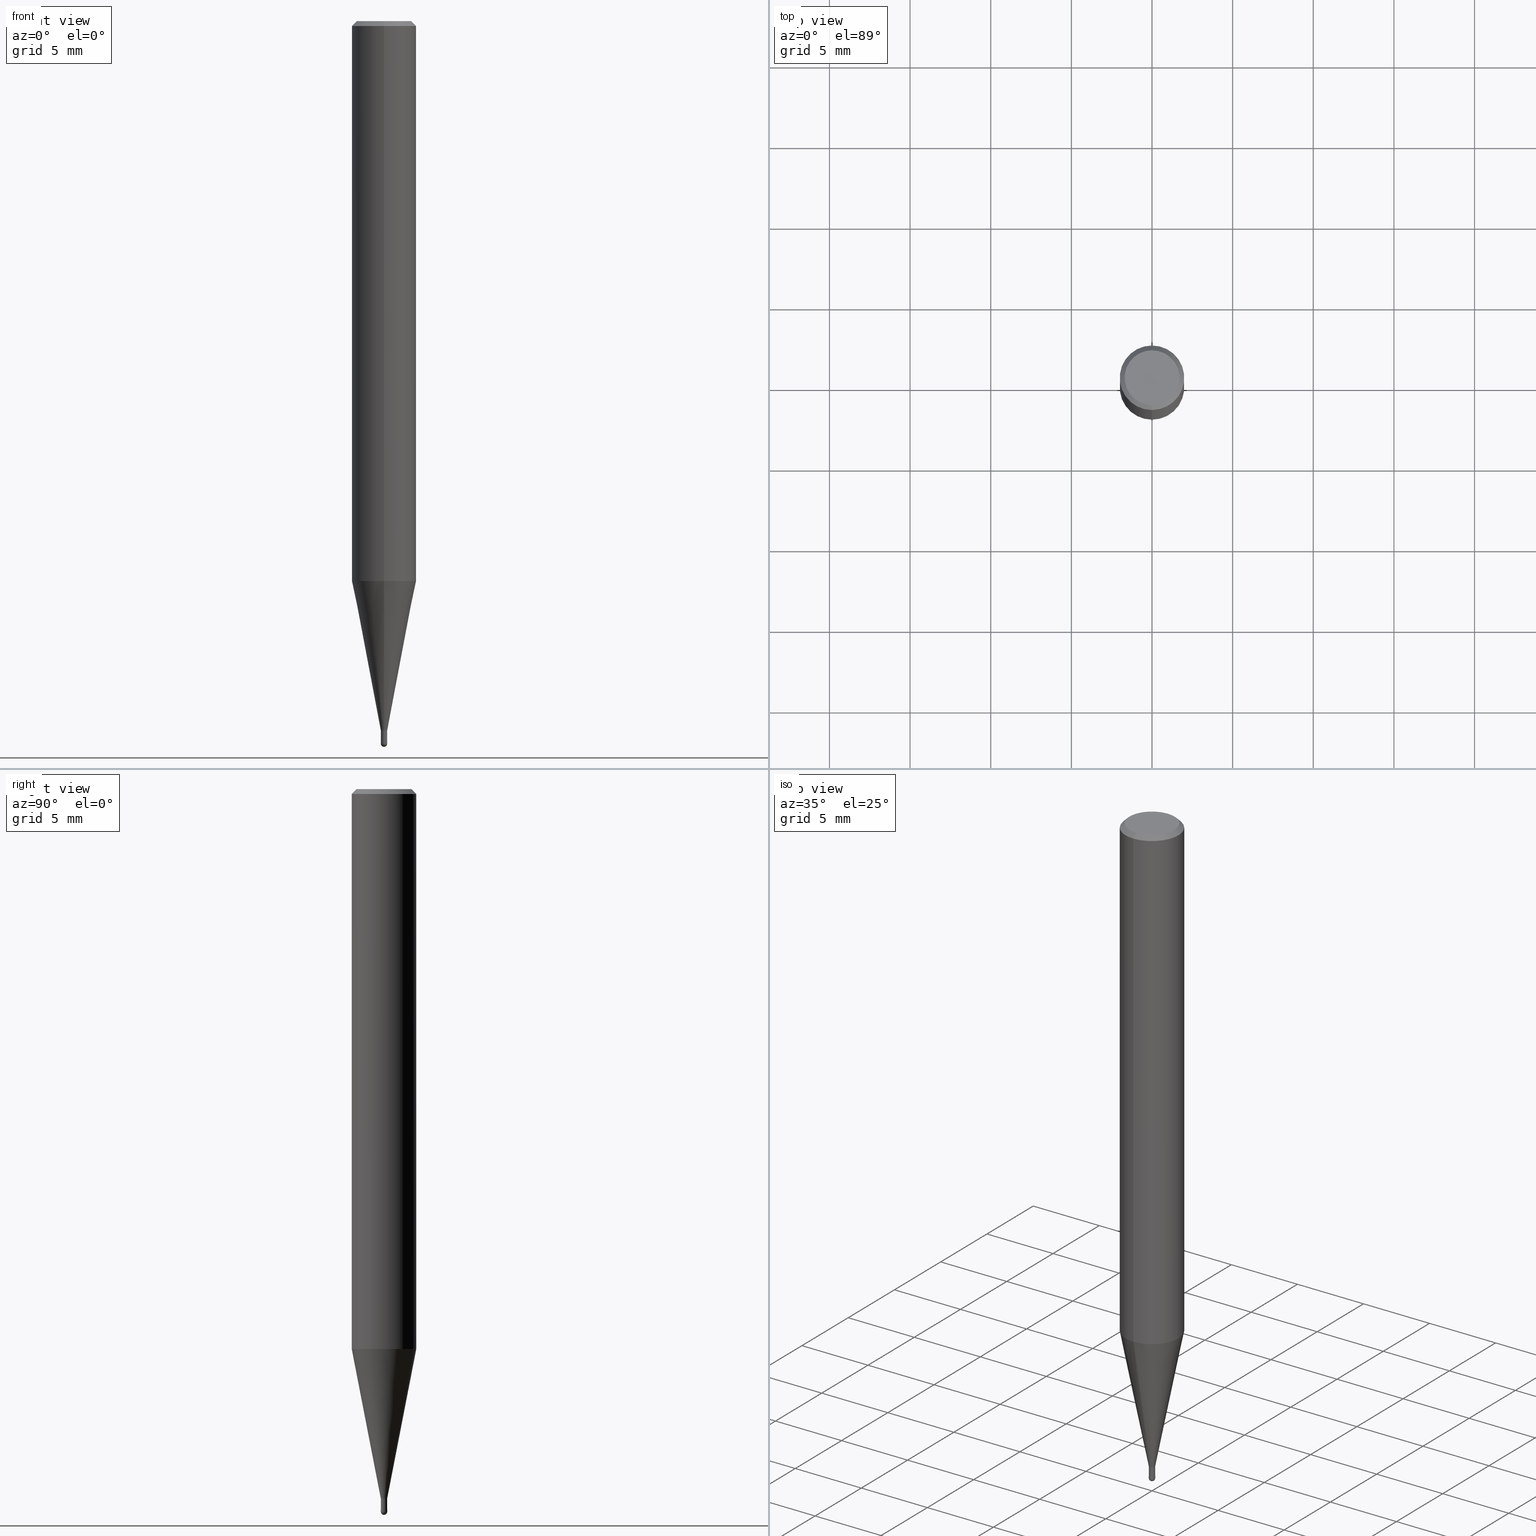
[diagram: canonical four-view strip — front | top / right | iso, engineering-drawing reading convention]
A machine part, canonical four-view strip (front | top / right | iso — engineering-drawing reading convention). The complete STEP part file that produces these views, byte-faithful:
ISO-10303-21;
HEADER;
FILE_DESCRIPTION(('no description'),'unknown implementation level');
FILE_NAME('CSELB2004-010-Huellk.stp','  ',('CIMSOURCE GmbH'),('CADClick - KiM GmbH - www.kimweb.de'),'unknown preprocess','ACIS','unknown authorization');
FILE_SCHEMA(('automotive_design'));
ENDSEC;
DATA;
#1=MECHANICAL_DESIGN_GEOMETRIC_PRESENTATION_REPRESENTATION(' ',(#14,#15,#16,#17,#18,#19,#20,#21,#22,#23,#24,#25,#26,#27,#28,#29,#30,#31,#32,#33,#34,#35,#36,#37,#38,#39,#40,#41,#42,#43,#44,#45,#46,#47,#48,#49,#50,#51,#52,#53,#54,#55,#56,#57,#58,#59,#60,#61,#62,#63,#64,#65,#66,#67,#68,#69,#70,#71,#72,#73,#74),#10);
#2=PRODUCT_DEFINITION_CONTEXT('',#75,'design');
#3=APPLICATION_PROTOCOL_DEFINITION('INTERNATIONAL STANDARD','automotive_design',1994,#75);
#4=PRODUCT_CATEGORY_RELATIONSHIP('NONE','NONE',#76,#77);
#5=SHAPE_DEFINITION_REPRESENTATION(#78,#79);
#6=PRODUCT_DEFINITION_CONTEXT('',#80,'design');
#7=APPLICATION_PROTOCOL_DEFINITION('INTERNATIONAL STANDARD','automotive_design',1994,#80);
#8=PRODUCT_CATEGORY_RELATIONSHIP('NONE','NONE',#81,#82);
#9=SHAPE_DEFINITION_REPRESENTATION(#83,#84);
#10= (GEOMETRIC_REPRESENTATION_CONTEXT(3)GLOBAL_UNCERTAINTY_ASSIGNED_CONTEXT((#87))GLOBAL_UNIT_ASSIGNED_CONTEXT((#89,#90,#91))REPRESENTATION_CONTEXT('NONE','WORKSPACE'));
#14=STYLED_ITEM('',(#93),#94);
#15=STYLED_ITEM('',(#95),#96);
#16=STYLED_ITEM('',(#97),#98);
#17=STYLED_ITEM('',(#99),#100);
#18=STYLED_ITEM('',(#101),#102);
#19=STYLED_ITEM('',(#103),#104);
#20=STYLED_ITEM('',(#105),#106);
#21=STYLED_ITEM('',(#107),#108);
#22=STYLED_ITEM('',(#109),#110);
#23=STYLED_ITEM('',(#111),#112);
#24=STYLED_ITEM('',(#113),#114);
#25=STYLED_ITEM('',(#115),#116);
#26=STYLED_ITEM('',(#117),#118);
#27=STYLED_ITEM('',(#119),#120);
#28=STYLED_ITEM('',(#121),#122);
#29=STYLED_ITEM('',(#123),#124);
#30=STYLED_ITEM('',(#125),#126);
#31=STYLED_ITEM('',(#127),#128);
#32=STYLED_ITEM('',(#129),#130);
#33=STYLED_ITEM('',(#131),#132);
#34=STYLED_ITEM('',(#133),#134);
#35=STYLED_ITEM('',(#135),#136);
#36=STYLED_ITEM('',(#137),#138);
#37=STYLED_ITEM('',(#139),#140);
#38=STYLED_ITEM('',(#141),#142);
#39=STYLED_ITEM('',(#143),#144);
#40=STYLED_ITEM('',(#145),#146);
#41=STYLED_ITEM('',(#147),#148);
#42=STYLED_ITEM('',(#149),#150);
#43=STYLED_ITEM('',(#151),#152);
#44=STYLED_ITEM('',(#153),#154);
#45=STYLED_ITEM('',(#155),#156);
#46=STYLED_ITEM('',(#157),#158);
#47=STYLED_ITEM('',(#159),#160);
#48=STYLED_ITEM('',(#161),#162);
#49=STYLED_ITEM('',(#163),#164);
#50=STYLED_ITEM('',(#165),#166);
#51=STYLED_ITEM('',(#167),#168);
#52=STYLED_ITEM('',(#169),#170);
#53=STYLED_ITEM('',(#171),#172);
#54=STYLED_ITEM('',(#173),#174);
#55=STYLED_ITEM('',(#175),#176);
#56=STYLED_ITEM('',(#177),#178);
#57=STYLED_ITEM('',(#179),#180);
#58=STYLED_ITEM('',(#181),#182);
#59=STYLED_ITEM('',(#183),#184);
#60=STYLED_ITEM('',(#185),#186);
#61=STYLED_ITEM('',(#187),#188);
#62=STYLED_ITEM('',(#189),#190);
#63=STYLED_ITEM('',(#191),#192);
#64=STYLED_ITEM('',(#193),#194);
#65=STYLED_ITEM('',(#195),#196);
#66=STYLED_ITEM('',(#197),#198);
#67=STYLED_ITEM('',(#199),#200);
#68=STYLED_ITEM('',(#201),#202);
#69=STYLED_ITEM('',(#203),#204);
#70=STYLED_ITEM('',(#205),#206);
#71=STYLED_ITEM('',(#207),#208);
#72=STYLED_ITEM('',(#209),#210);
#73=STYLED_ITEM('',(#211),#212);
#74=STYLED_ITEM('',(#213),#214);
#75=APPLICATION_CONTEXT(' ');
#76=PRODUCT_CATEGORY('part','NONE');
#77=PRODUCT_RELATED_PRODUCT_CATEGORY('detail',' ',(#215));
#78=PRODUCT_DEFINITION_SHAPE('NONE','NONE',#216);
#79=ADVANCED_BREP_SHAPE_REPRESENTATION('1',(#104,#217),#10);
#80=APPLICATION_CONTEXT(' ');
#81=PRODUCT_CATEGORY('part','NONE');
#82=PRODUCT_RELATED_PRODUCT_CATEGORY('detail',' ',(#218));
#83=PRODUCT_DEFINITION_SHAPE('NONE','NONE',#219);
#84=ADVANCED_BREP_SHAPE_REPRESENTATION('2',(#194,#220),#10);
#87=UNCERTAINTY_MEASURE_WITH_UNIT(LENGTH_MEASURE(1.0E-006),#89,'','');
#89= (CONVERSION_BASED_UNIT('MILLIMETRE',#223)LENGTH_UNIT()NAMED_UNIT(#226));
#90= (NAMED_UNIT(#228)PLANE_ANGLE_UNIT()SI_UNIT($,.RADIAN.));
#91= (NAMED_UNIT(#228)SOLID_ANGLE_UNIT()SI_UNIT($,.STERADIAN.));
#93=PRESENTATION_STYLE_ASSIGNMENT((#234));
#94=EDGE_CURVE('',#118,#210,#235,.T.);
#95=PRESENTATION_STYLE_ASSIGNMENT((#236));
#96=EDGE_CURVE('',#112,#162,#237,.T.);
#97=PRESENTATION_STYLE_ASSIGNMENT((#238));
#98=VERTEX_POINT('',#239);
#99=PRESENTATION_STYLE_ASSIGNMENT((#240));
#100=EDGE_CURVE('',#212,#98,#241,.T.);
#101=PRESENTATION_STYLE_ASSIGNMENT((#242));
#102=ADVANCED_FACE('',(#243),#244,.T.);
#103=PRESENTATION_STYLE_ASSIGNMENT((#245));
#104=MANIFOLD_SOLID_BREP('1',#246);
#105=PRESENTATION_STYLE_ASSIGNMENT((#247));
#106=EDGE_CURVE('',#142,#134,#248,.T.);
#107=PRESENTATION_STYLE_ASSIGNMENT((#249));
#108=VERTEX_POINT('',#250);
#109=PRESENTATION_STYLE_ASSIGNMENT((#251));
#110=EDGE_CURVE('',#152,#212,#252,.T.);
#111=PRESENTATION_STYLE_ASSIGNMENT((#253));
#112=VERTEX_POINT('',#254);
#113=PRESENTATION_STYLE_ASSIGNMENT((#255));
#114=VERTEX_POINT('',#256);
#115=PRESENTATION_STYLE_ASSIGNMENT((#257));
#116=VERTEX_POINT('',#258);
#117=PRESENTATION_STYLE_ASSIGNMENT((#259));
#118=VERTEX_POINT('',#260);
#119=PRESENTATION_STYLE_ASSIGNMENT((#261));
#120=EDGE_CURVE('',#192,#114,#262,.T.);
#121=PRESENTATION_STYLE_ASSIGNMENT((#263));
#122=ADVANCED_FACE('',(#264),#265,.T.);
#123=PRESENTATION_STYLE_ASSIGNMENT((#266));
#124=ADVANCED_FACE('',(#267),#268,.T.);
#125=PRESENTATION_STYLE_ASSIGNMENT((#269));
#126=EDGE_CURVE('',#114,#142,#270,.T.);
#127=PRESENTATION_STYLE_ASSIGNMENT((#271));
#128=EDGE_CURVE('',#134,#142,#272,.T.);
#129=PRESENTATION_STYLE_ASSIGNMENT((#273));
#130=EDGE_CURVE('',#98,#144,#274,.T.);
#131=PRESENTATION_STYLE_ASSIGNMENT((#275));
#132=ADVANCED_FACE('',(#276),#277,.T.);
#133=PRESENTATION_STYLE_ASSIGNMENT((#278));
#134=VERTEX_POINT('',#279);
#135=PRESENTATION_STYLE_ASSIGNMENT((#280));
#136=EDGE_CURVE('',#98,#188,#281,.T.);
#137=PRESENTATION_STYLE_ASSIGNMENT((#282));
#138=EDGE_CURVE('',#212,#152,#283,.T.);
#139=PRESENTATION_STYLE_ASSIGNMENT((#284));
#140=ADVANCED_FACE('',(#285),#286,.T.);
#141=PRESENTATION_STYLE_ASSIGNMENT((#287));
#142=VERTEX_POINT('',#288);
#143=PRESENTATION_STYLE_ASSIGNMENT((#289));
#144=VERTEX_POINT('',#290);
#145=PRESENTATION_STYLE_ASSIGNMENT((#291));
#146=ADVANCED_FACE('',(#292),#293,.T.);
#147=PRESENTATION_STYLE_ASSIGNMENT((#294));
#148=VERTEX_POINT('',#295);
#149=PRESENTATION_STYLE_ASSIGNMENT((#296));
#150=EDGE_CURVE('',#210,#118,#297,.T.);
#151=PRESENTATION_STYLE_ASSIGNMENT((#298));
#152=VERTEX_POINT('',#299);
#153=PRESENTATION_STYLE_ASSIGNMENT((#300));
#154=ADVANCED_FACE('',(#301),#302,.T.);
#155=PRESENTATION_STYLE_ASSIGNMENT((#303));
#156=EDGE_CURVE('',#162,#116,#304,.T.);
#157=PRESENTATION_STYLE_ASSIGNMENT((#305));
#158=ADVANCED_FACE('',(#306),#307,.T.);
#159=PRESENTATION_STYLE_ASSIGNMENT((#308));
#160=EDGE_CURVE('',#108,#144,#309,.T.);
#161=PRESENTATION_STYLE_ASSIGNMENT((#310));
#162=VERTEX_POINT('',#311);
#163=PRESENTATION_STYLE_ASSIGNMENT((#312));
#164=EDGE_CURVE('',#116,#148,#313,.T.);
#165=PRESENTATION_STYLE_ASSIGNMENT((#314));
#166=EDGE_CURVE('',#134,#192,#315,.T.);
#167=PRESENTATION_STYLE_ASSIGNMENT((#316));
#168=ADVANCED_FACE('',(#317),#318,.T.);
#169=PRESENTATION_STYLE_ASSIGNMENT((#319));
#170=EDGE_CURVE('',#148,#112,#320,.T.);
#171=PRESENTATION_STYLE_ASSIGNMENT((#321));
#172=ADVANCED_FACE('',(#322),#323,.T.);
#173=PRESENTATION_STYLE_ASSIGNMENT((#324));
#174=EDGE_CURVE('',#148,#116,#325,.T.);
#175=PRESENTATION_STYLE_ASSIGNMENT((#326));
#176=EDGE_CURVE('',#162,#112,#327,.T.);
#177=PRESENTATION_STYLE_ASSIGNMENT((#328));
#178=ADVANCED_FACE('',(#329),#330,.T.);
#179=PRESENTATION_STYLE_ASSIGNMENT((#331));
#180=EDGE_CURVE('',#144,#152,#332,.T.);
#181=PRESENTATION_STYLE_ASSIGNMENT((#333));
#182=ADVANCED_FACE('',(#334),#335,.T.);
#183=PRESENTATION_STYLE_ASSIGNMENT((#336));
#184=EDGE_CURVE('',#108,#188,#337,.T.);
#185=PRESENTATION_STYLE_ASSIGNMENT((#338));
#186=ADVANCED_FACE('',(#339),#340,.T.);
#187=PRESENTATION_STYLE_ASSIGNMENT((#341));
#188=VERTEX_POINT('',#342);
#189=PRESENTATION_STYLE_ASSIGNMENT((#343));
#190=ADVANCED_FACE('',(#344),#345,.T.);
#191=PRESENTATION_STYLE_ASSIGNMENT((#346));
#192=VERTEX_POINT('',#347);
#193=PRESENTATION_STYLE_ASSIGNMENT((#348));
#194=MANIFOLD_SOLID_BREP('2',#349);
#195=PRESENTATION_STYLE_ASSIGNMENT((#350));
#196=ADVANCED_FACE('',(#351),#352,.T.);
#197=PRESENTATION_STYLE_ASSIGNMENT((#353));
#198=EDGE_CURVE('',#148,#116,#354,.T.);
#199=PRESENTATION_STYLE_ASSIGNMENT((#355));
#200=EDGE_CURVE('',#144,#98,#356,.T.);
#201=PRESENTATION_STYLE_ASSIGNMENT((#357));
#202=EDGE_CURVE('',#142,#210,#358,.T.);
#203=PRESENTATION_STYLE_ASSIGNMENT((#359));
#204=EDGE_CURVE('',#118,#134,#360,.T.);
#205=PRESENTATION_STYLE_ASSIGNMENT((#361));
#206=EDGE_CURVE('',#114,#192,#362,.T.);
#207=PRESENTATION_STYLE_ASSIGNMENT((#363));
#208=EDGE_CURVE('',#188,#108,#364,.T.);
#209=PRESENTATION_STYLE_ASSIGNMENT((#365));
#210=VERTEX_POINT('',#366);
#211=PRESENTATION_STYLE_ASSIGNMENT((#367));
#212=VERTEX_POINT('',#368);
#213=PRESENTATION_STYLE_ASSIGNMENT((#369));
#214=ADVANCED_FACE('',(#370,#371),#372,.T.);
#215=PRODUCT('1','1','PART-1-DESC',(#373));
#216=PRODUCT_DEFINITION('NONE','NONE',#374,#2);
#217=AXIS2_PLACEMENT_3D('',#375,#376,#377);
#218=PRODUCT('2','2','PART-2-DESC',(#378));
#219=PRODUCT_DEFINITION('NONE','NONE',#379,#6);
#220=AXIS2_PLACEMENT_3D('',#380,#381,#382);
#223=LENGTH_MEASURE_WITH_UNIT(LENGTH_MEASURE(1.0),#383);
#226=DIMENSIONAL_EXPONENTS(1.0,0.0,0.0,0.0,0.0,0.0,0.0);
#228=DIMENSIONAL_EXPONENTS(0.0,0.0,0.0,0.0,0.0,0.0,0.0);
#234=CURVE_STYLE('',#384,POSITIVE_LENGTH_MEASURE(1.0E-006),#385);
#235=CIRCLE('',#386,0.19495);
#236=CURVE_STYLE('',#387,POSITIVE_LENGTH_MEASURE(1.0E-006),#388);
#237=CIRCLE('',#389,0.1999);
#238=POINT_STYLE(' ',#390,POSITIVE_LENGTH_MEASURE(1.0E-006),#391);
#239=CARTESIAN_POINT('',(0.0,2.0,-0.299999999999997));
#240=CURVE_STYLE('',#392,POSITIVE_LENGTH_MEASURE(1.0E-006),#393);
#241=LINE('',#394,#395);
#242=SURFACE_STYLE_USAGE(.BOTH.,#396);
#243=FACE_OUTER_BOUND('',#397,.T.);
#244=PLANE('',#398);
#245=SURFACE_STYLE_USAGE(.BOTH.,#399);
#246=CLOSED_SHELL('',(#122,#124,#140,#190,#214,#182,#168,#132,#146,#178,#196));
#247=CURVE_STYLE('',#400,POSITIVE_LENGTH_MEASURE(1.0E-006),#401);
#248=CIRCLE('',#402,0.19495);
#249=POINT_STYLE(' ',#403,POSITIVE_LENGTH_MEASURE(1.0E-006),#404);
#250=CARTESIAN_POINT('',(2.44921270764475E-016,-2.0,-34.714));
#251=CURVE_STYLE('',#405,POSITIVE_LENGTH_MEASURE(1.0E-006),#406);
#252=CIRCLE('',#407,1.7);
#253=POINT_STYLE(' ',#408,POSITIVE_LENGTH_MEASURE(1.0E-006),#409);
#254=CARTESIAN_POINT('',(2.44798810129093E-017,-0.1999,-44.68));
#255=POINT_STYLE(' ',#410,POSITIVE_LENGTH_MEASURE(1.0E-006),#411);
#256=CARTESIAN_POINT('',(0.0,1.99995,-34.714));
#257=POINT_STYLE(' ',#412,POSITIVE_LENGTH_MEASURE(1.0E-006),#413);
#258=CARTESIAN_POINT('',(0.0,0.2,-44.8));
#259=POINT_STYLE(' ',#414,POSITIVE_LENGTH_MEASURE(1.0E-006),#415);
#260=CARTESIAN_POINT('',(2.38737008677672E-017,-0.19495,-44.68));
#261=CURVE_STYLE('',#416,POSITIVE_LENGTH_MEASURE(1.0E-006),#417);
#262=CIRCLE('',#418,1.99995);
#263=SURFACE_STYLE_USAGE(.BOTH.,#419);
#264=FACE_OUTER_BOUND('',#420,.T.);
#265=CYLINDRICAL_SURFACE('',#421,0.19495);
#266=SURFACE_STYLE_USAGE(.BOTH.,#422);
#267=FACE_OUTER_BOUND('',#423,.T.);
#268=CONICAL_SURFACE('',#424,1.09745,0.191984604054908);
#269=CURVE_STYLE('',#425,POSITIVE_LENGTH_MEASURE(1.0E-006),#426);
#270=LINE('',#427,#428);
#271=CURVE_STYLE('',#429,POSITIVE_LENGTH_MEASURE(1.0E-006),#430);
#272=CIRCLE('',#431,0.19495);
#273=CURVE_STYLE('',#432,POSITIVE_LENGTH_MEASURE(1.0E-006),#433);
#274=CIRCLE('',#434,2.0);
#275=SURFACE_STYLE_USAGE(.BOTH.,#435);
#276=FACE_OUTER_BOUND('',#436,.T.);
#277=CYLINDRICAL_SURFACE('',#437,2.0);
#278=POINT_STYLE(' ',#438,POSITIVE_LENGTH_MEASURE(1.0E-006),#439);
#279=CARTESIAN_POINT('',(2.38737008677672E-017,-0.19495,-44.0));
#280=CURVE_STYLE('',#440,POSITIVE_LENGTH_MEASURE(1.0E-006),#441);
#281=LINE('',#442,#443);
#282=CURVE_STYLE('',#444,POSITIVE_LENGTH_MEASURE(1.0E-006),#445);
#283=CIRCLE('',#446,1.7);
#284=SURFACE_STYLE_USAGE(.BOTH.,#447);
#285=FACE_OUTER_BOUND('',#448,.T.);
#286=CYLINDRICAL_SURFACE('',#449,2.0);
#287=POINT_STYLE(' ',#450,POSITIVE_LENGTH_MEASURE(1.0E-006),#451);
#288=CARTESIAN_POINT('',(0.0,0.19495,-44.0));
#289=POINT_STYLE(' ',#452,POSITIVE_LENGTH_MEASURE(1.0E-006),#453);
#290=CARTESIAN_POINT('',(2.44921270764475E-016,-2.0,-0.299999999999997));
#291=SURFACE_STYLE_USAGE(.BOTH.,#454);
#292=FACE_OUTER_BOUND('',#455,.T.);
#293=CONICAL_SURFACE('',#456,1.09745,0.191984604054908);
#294=POINT_STYLE(' ',#457,POSITIVE_LENGTH_MEASURE(1.0E-006),#458);
#295=CARTESIAN_POINT('',(2.44921270764475E-017,-0.2,-44.8));
#296=CURVE_STYLE('',#459,POSITIVE_LENGTH_MEASURE(1.0E-006),#460);
#297=CIRCLE('',#461,0.19495);
#298=POINT_STYLE(' ',#462,POSITIVE_LENGTH_MEASURE(1.0E-006),#463);
#299=CARTESIAN_POINT('',(2.08183080149804E-016,-1.7,0.0));
#300=SURFACE_STYLE_USAGE(.BOTH.,#464);
#301=FACE_OUTER_BOUND('',#465,.T.);
#302=SPHERICAL_SURFACE('',#466,0.2);
#303=CURVE_STYLE('',#467,POSITIVE_LENGTH_MEASURE(1.0E-006),#468);
#304=LINE('',#469,#470);
#305=SURFACE_STYLE_USAGE(.BOTH.,#471);
#306=FACE_OUTER_BOUND('',#472,.T.);
#307=SPHERICAL_SURFACE('',#473,0.2);
#308=CURVE_STYLE('',#474,POSITIVE_LENGTH_MEASURE(1.0E-006),#475);
#309=LINE('',#476,#477);
#310=POINT_STYLE(' ',#478,POSITIVE_LENGTH_MEASURE(1.0E-006),#479);
#311=CARTESIAN_POINT('',(0.0,0.1999,-44.68));
#312=CURVE_STYLE('',#480,POSITIVE_LENGTH_MEASURE(1.0E-006),#481);
#313=CIRCLE('',#482,0.2);
#314=CURVE_STYLE('',#483,POSITIVE_LENGTH_MEASURE(1.0E-006),#484);
#315=LINE('',#485,#486);
#316=SURFACE_STYLE_USAGE(.BOTH.,#487);
#317=FACE_OUTER_BOUND('',#488,.T.);
#318=CONICAL_SURFACE('',#489,1.85,0.785398163397453);
#319=CURVE_STYLE('',#490,POSITIVE_LENGTH_MEASURE(1.0E-006),#491);
#320=LINE('',#492,#493);
#321=SURFACE_STYLE_USAGE(.BOTH.,#494);
#322=FACE_OUTER_BOUND('',#495,.T.);
#323=CONICAL_SURFACE('',#496,0.19995,0.000833333140432319);
#324=CURVE_STYLE('',#497,POSITIVE_LENGTH_MEASURE(1.0E-006),#498);
#325=CIRCLE('',#499,0.2);
#326=CURVE_STYLE('',#500,POSITIVE_LENGTH_MEASURE(1.0E-006),#501);
#327=CIRCLE('',#502,0.1999);
#328=SURFACE_STYLE_USAGE(.BOTH.,#503);
#329=FACE_OUTER_BOUND('',#504,.T.);
#330=CYLINDRICAL_SURFACE('',#505,0.19495);
#331=CURVE_STYLE('',#506,POSITIVE_LENGTH_MEASURE(1.0E-006),#507);
#332=LINE('',#508,#509);
#333=SURFACE_STYLE_USAGE(.BOTH.,#510);
#334=FACE_OUTER_BOUND('',#511,.T.);
#335=PLANE('',#512);
#336=CURVE_STYLE('',#513,POSITIVE_LENGTH_MEASURE(1.0E-006),#514);
#337=CIRCLE('',#515,2.0);
#338=SURFACE_STYLE_USAGE(.BOTH.,#516);
#339=FACE_OUTER_BOUND('',#517,.T.);
#340=CONICAL_SURFACE('',#518,0.19995,0.000833333140432319);
#341=POINT_STYLE(' ',#519,POSITIVE_LENGTH_MEASURE(1.0E-006),#520);
#342=CARTESIAN_POINT('',(0.0,2.0,-34.714));
#343=SURFACE_STYLE_USAGE(.BOTH.,#521);
#344=FACE_OUTER_BOUND('',#522,.T.);
#345=CONICAL_SURFACE('',#523,1.85,0.785398163397453);
#346=POINT_STYLE(' ',#524,POSITIVE_LENGTH_MEASURE(1.0E-006),#525);
#347=CARTESIAN_POINT('',(2.44915147732706E-016,-1.99995,-34.714));
#348=SURFACE_STYLE_USAGE(.BOTH.,#526);
#349=CLOSED_SHELL('',(#158,#172,#102,#186,#154));
#350=SURFACE_STYLE_USAGE(.BOTH.,#527);
#351=FACE_OUTER_BOUND('',#528,.T.);
#352=PLANE('',#529);
#353=CURVE_STYLE('',#530,POSITIVE_LENGTH_MEASURE(1.0E-006),#531);
#354=CIRCLE('',#532,0.2);
#355=CURVE_STYLE('',#533,POSITIVE_LENGTH_MEASURE(1.0E-006),#534);
#356=CIRCLE('',#535,2.0);
#357=CURVE_STYLE('',#536,POSITIVE_LENGTH_MEASURE(1.0E-006),#537);
#358=LINE('',#538,#539);
#359=CURVE_STYLE('',#540,POSITIVE_LENGTH_MEASURE(1.0E-006),#541);
#360=LINE('',#542,#543);
#361=CURVE_STYLE('',#544,POSITIVE_LENGTH_MEASURE(1.0E-006),#545);
#362=CIRCLE('',#546,1.99995);
#363=CURVE_STYLE('',#547,POSITIVE_LENGTH_MEASURE(1.0E-006),#548);
#364=CIRCLE('',#549,2.0);
#365=POINT_STYLE(' ',#550,POSITIVE_LENGTH_MEASURE(1.0E-006),#551);
#366=CARTESIAN_POINT('',(0.0,0.19495,-44.68));
#367=POINT_STYLE(' ',#552,POSITIVE_LENGTH_MEASURE(1.0E-006),#553);
#368=CARTESIAN_POINT('',(0.0,1.7,0.0));
#369=SURFACE_STYLE_USAGE(.BOTH.,#554);
#370=FACE_OUTER_BOUND('',#555,.T.);
#371=FACE_BOUND('',#556,.T.);
#372=PLANE('',#557);
#373=PRODUCT_CONTEXT('',#75,'mechanical');
#374=PRODUCT_DEFINITION_FORMATION_WITH_SPECIFIED_SOURCE(' ','NONE',#215,.NOT_KNOWN.);
#375=CARTESIAN_POINT('',(0.0,0.0,0.0));
#376=DIRECTION('',(0.0,0.0,1.0));
#377=DIRECTION('',(1.0,0.0,0.0));
#378=PRODUCT_CONTEXT('',#80,'mechanical');
#379=PRODUCT_DEFINITION_FORMATION_WITH_SPECIFIED_SOURCE(' ','NONE',#218,.NOT_KNOWN.);
#380=CARTESIAN_POINT('',(0.0,0.0,0.0));
#381=DIRECTION('',(0.0,0.0,1.0));
#382=DIRECTION('',(1.0,0.0,0.0));
#383= (NAMED_UNIT(#226)LENGTH_UNIT()SI_UNIT(.MILLI.,.METRE.));
#384=DRAUGHTING_PRE_DEFINED_CURVE_FONT('continuous');
#385=COLOUR_RGB('',0.498039215803146,0.498039215803146,0.498039215803146);
#386=AXIS2_PLACEMENT_3D('',#559,#560,#561);
#387=DRAUGHTING_PRE_DEFINED_CURVE_FONT('continuous');
#388=COLOUR_RGB('',0.800000011920929,0.800000011920929,0.800000011920929);
#389=AXIS2_PLACEMENT_3D('',#562,#563,#564);
#390=PRE_DEFINED_MARKER('');
#391=COLOUR_RGB('',0.498039215803146,0.498039215803146,0.498039215803146);
#392=DRAUGHTING_PRE_DEFINED_CURVE_FONT('continuous');
#393=COLOUR_RGB('',0.498039215803146,0.498039215803146,0.498039215803146);
#394=CARTESIAN_POINT('',(-2.2655217545714E-016,1.85,-0.149999999999999));
#395=VECTOR('',#565,1.0);
#396=SURFACE_SIDE_STYLE('',(#566));
#397=EDGE_LOOP('',(#567,#568));
#398=AXIS2_PLACEMENT_3D('',#569,#570,#571);
#399=SURFACE_SIDE_STYLE('',(#572));
#400=DRAUGHTING_PRE_DEFINED_CURVE_FONT('continuous');
#401=COLOUR_RGB('',0.498039215803146,0.498039215803146,0.498039215803146);
#402=AXIS2_PLACEMENT_3D('',#573,#574,#575);
#403=PRE_DEFINED_MARKER('');
#404=COLOUR_RGB('',0.498039215803146,0.498039215803146,0.498039215803146);
#405=DRAUGHTING_PRE_DEFINED_CURVE_FONT('continuous');
#406=COLOUR_RGB('',0.498039215803146,0.498039215803146,0.498039215803146);
#407=AXIS2_PLACEMENT_3D('',#576,#577,#578);
#408=PRE_DEFINED_MARKER('');
#409=COLOUR_RGB('',0.800000011920929,0.800000011920929,0.800000011920929);
#410=PRE_DEFINED_MARKER('');
#411=COLOUR_RGB('',0.498039215803146,0.498039215803146,0.498039215803146);
#412=PRE_DEFINED_MARKER('');
#413=COLOUR_RGB('',0.800000011920929,0.800000011920929,0.800000011920929);
#414=PRE_DEFINED_MARKER('');
#415=COLOUR_RGB('',0.498039215803146,0.498039215803146,0.498039215803146);
#416=DRAUGHTING_PRE_DEFINED_CURVE_FONT('continuous');
#417=COLOUR_RGB('',0.498039215803146,0.498039215803146,0.498039215803146);
#418=AXIS2_PLACEMENT_3D('',#579,#580,#581);
#419=SURFACE_SIDE_STYLE('',(#582));
#420=EDGE_LOOP('',(#583,#584,#585,#586));
#421=AXIS2_PLACEMENT_3D('',#587,#588,#589);
#422=SURFACE_SIDE_STYLE('',(#590));
#423=EDGE_LOOP('',(#591,#592,#593,#594));
#424=AXIS2_PLACEMENT_3D('',#595,#596,#597);
#425=DRAUGHTING_PRE_DEFINED_CURVE_FONT('continuous');
#426=COLOUR_RGB('',0.498039215803146,0.498039215803146,0.498039215803146);
#427=CARTESIAN_POINT('',(-1.34394424300237E-016,1.09745,-39.357));
#428=VECTOR('',#598,1.0);
#429=DRAUGHTING_PRE_DEFINED_CURVE_FONT('continuous');
#430=COLOUR_RGB('',0.498039215803146,0.498039215803146,0.498039215803146);
#431=AXIS2_PLACEMENT_3D('',#599,#600,#601);
#432=DRAUGHTING_PRE_DEFINED_CURVE_FONT('continuous');
#433=COLOUR_RGB('',0.498039215803146,0.498039215803146,0.498039215803146);
#434=AXIS2_PLACEMENT_3D('',#602,#603,#604);
#435=SURFACE_SIDE_STYLE('',(#605));
#436=EDGE_LOOP('',(#606,#607,#608,#609));
#437=AXIS2_PLACEMENT_3D('',#610,#611,#612);
#438=PRE_DEFINED_MARKER('');
#439=COLOUR_RGB('',0.498039215803146,0.498039215803146,0.498039215803146);
#440=DRAUGHTING_PRE_DEFINED_CURVE_FONT('continuous');
#441=COLOUR_RGB('',0.498039215803146,0.498039215803146,0.498039215803146);
#442=CARTESIAN_POINT('',(-2.44921270764475E-016,2.0,-17.507));
#443=VECTOR('',#613,1.0);
#444=DRAUGHTING_PRE_DEFINED_CURVE_FONT('continuous');
#445=COLOUR_RGB('',0.498039215803146,0.498039215803146,0.498039215803146);
#446=AXIS2_PLACEMENT_3D('',#614,#615,#616);
#447=SURFACE_SIDE_STYLE('',(#617));
#448=EDGE_LOOP('',(#618,#619,#620,#621));
#449=AXIS2_PLACEMENT_3D('',#622,#623,#624);
#450=PRE_DEFINED_MARKER('');
#451=COLOUR_RGB('',0.498039215803146,0.498039215803146,0.498039215803146);
#452=PRE_DEFINED_MARKER('');
#453=COLOUR_RGB('',0.498039215803146,0.498039215803146,0.498039215803146);
#454=SURFACE_SIDE_STYLE('',(#625));
#455=EDGE_LOOP('',(#626,#627,#628,#629));
#456=AXIS2_PLACEMENT_3D('',#630,#631,#632);
#457=PRE_DEFINED_MARKER('');
#458=COLOUR_RGB('',0.800000011920929,0.800000011920929,0.800000011920929);
#459=DRAUGHTING_PRE_DEFINED_CURVE_FONT('continuous');
#460=COLOUR_RGB('',0.498039215803146,0.498039215803146,0.498039215803146);
#461=AXIS2_PLACEMENT_3D('',#633,#634,#635);
#462=PRE_DEFINED_MARKER('');
#463=COLOUR_RGB('',0.498039215803146,0.498039215803146,0.498039215803146);
#464=SURFACE_SIDE_STYLE('',(#636));
#465=EDGE_LOOP('',(#637,#638));
#466=AXIS2_PLACEMENT_3D('',#639,#640,#641);
#467=DRAUGHTING_PRE_DEFINED_CURVE_FONT('continuous');
#468=COLOUR_RGB('',0.800000011920929,0.800000011920929,0.800000011920929);
#469=CARTESIAN_POINT('',(-2.44860040446784E-017,0.19995,-44.74));
#470=VECTOR('',#642,1.0);
#471=SURFACE_SIDE_STYLE('',(#643));
#472=EDGE_LOOP('',(#644,#645));
#473=AXIS2_PLACEMENT_3D('',#646,#647,#648);
#474=DRAUGHTING_PRE_DEFINED_CURVE_FONT('continuous');
#475=COLOUR_RGB('',0.498039215803146,0.498039215803146,0.498039215803146);
#476=CARTESIAN_POINT('',(2.44921270764475E-016,-2.0,-17.507));
#477=VECTOR('',#649,1.0);
#478=PRE_DEFINED_MARKER('');
#479=COLOUR_RGB('',0.800000011920929,0.800000011920929,0.800000011920929);
#480=DRAUGHTING_PRE_DEFINED_CURVE_FONT('continuous');
#481=COLOUR_RGB('',0.800000011920929,0.800000011920929,0.800000011920929);
#482=AXIS2_PLACEMENT_3D('',#650,#651,#652);
#483=DRAUGHTING_PRE_DEFINED_CURVE_FONT('continuous');
#484=COLOUR_RGB('',0.498039215803146,0.498039215803146,0.498039215803146);
#485=CARTESIAN_POINT('',(1.34394424300237E-016,-1.09745,-39.357));
#486=VECTOR('',#653,1.0);
#487=SURFACE_SIDE_STYLE('',(#654));
#488=EDGE_LOOP('',(#655,#656,#657,#658));
#489=AXIS2_PLACEMENT_3D('',#659,#660,#661);
#490=DRAUGHTING_PRE_DEFINED_CURVE_FONT('continuous');
#491=COLOUR_RGB('',0.800000011920929,0.800000011920929,0.800000011920929);
#492=CARTESIAN_POINT('',(2.44860040446784E-017,-0.19995,-44.74));
#493=VECTOR('',#662,1.0);
#494=SURFACE_SIDE_STYLE('',(#663));
#495=EDGE_LOOP('',(#664,#665,#666,#667));
#496=AXIS2_PLACEMENT_3D('',#668,#669,#670);
#497=DRAUGHTING_PRE_DEFINED_CURVE_FONT('continuous');
#498=COLOUR_RGB('',0.800000011920929,0.800000011920929,0.800000011920929);
#499=AXIS2_PLACEMENT_3D('',#671,#672,#673);
#500=DRAUGHTING_PRE_DEFINED_CURVE_FONT('continuous');
#501=COLOUR_RGB('',0.800000011920929,0.800000011920929,0.800000011920929);
#502=AXIS2_PLACEMENT_3D('',#674,#675,#676);
#503=SURFACE_SIDE_STYLE('',(#677));
#504=EDGE_LOOP('',(#678,#679,#680,#681));
#505=AXIS2_PLACEMENT_3D('',#682,#683,#684);
#506=DRAUGHTING_PRE_DEFINED_CURVE_FONT('continuous');
#507=COLOUR_RGB('',0.498039215803146,0.498039215803146,0.498039215803146);
#508=CARTESIAN_POINT('',(2.2655217545714E-016,-1.85,-0.149999999999999));
#509=VECTOR('',#685,1.0);
#510=SURFACE_SIDE_STYLE('',(#686));
#511=EDGE_LOOP('',(#687,#688));
#512=AXIS2_PLACEMENT_3D('',#689,#690,#691);
#513=DRAUGHTING_PRE_DEFINED_CURVE_FONT('continuous');
#514=COLOUR_RGB('',0.498039215803146,0.498039215803146,0.498039215803146);
#515=AXIS2_PLACEMENT_3D('',#692,#693,#694);
#516=SURFACE_SIDE_STYLE('',(#695));
#517=EDGE_LOOP('',(#696,#697,#698,#699));
#518=AXIS2_PLACEMENT_3D('',#700,#701,#702);
#519=PRE_DEFINED_MARKER('');
#520=COLOUR_RGB('',0.498039215803146,0.498039215803146,0.498039215803146);
#521=SURFACE_SIDE_STYLE('',(#703));
#522=EDGE_LOOP('',(#704,#705,#706,#707));
#523=AXIS2_PLACEMENT_3D('',#708,#709,#710);
#524=PRE_DEFINED_MARKER('');
#525=COLOUR_RGB('',0.498039215803146,0.498039215803146,0.498039215803146);
#526=SURFACE_SIDE_STYLE('',(#711));
#527=SURFACE_SIDE_STYLE('',(#712));
#528=EDGE_LOOP('',(#713,#714));
#529=AXIS2_PLACEMENT_3D('',#715,#716,#717);
#530=DRAUGHTING_PRE_DEFINED_CURVE_FONT('continuous');
#531=COLOUR_RGB('',0.800000011920929,0.800000011920929,0.800000011920929);
#532=AXIS2_PLACEMENT_3D('',#718,#719,#720);
#533=DRAUGHTING_PRE_DEFINED_CURVE_FONT('continuous');
#534=COLOUR_RGB('',0.498039215803146,0.498039215803146,0.498039215803146);
#535=AXIS2_PLACEMENT_3D('',#721,#722,#723);
#536=DRAUGHTING_PRE_DEFINED_CURVE_FONT('continuous');
#537=COLOUR_RGB('',0.498039215803146,0.498039215803146,0.498039215803146);
#538=CARTESIAN_POINT('',(-2.38737008677672E-017,0.19495,-44.34));
#539=VECTOR('',#724,1.0);
#540=DRAUGHTING_PRE_DEFINED_CURVE_FONT('continuous');
#541=COLOUR_RGB('',0.498039215803146,0.498039215803146,0.498039215803146);
#542=CARTESIAN_POINT('',(2.38737008677672E-017,-0.19495,-44.34));
#543=VECTOR('',#725,1.0);
#544=DRAUGHTING_PRE_DEFINED_CURVE_FONT('continuous');
#545=COLOUR_RGB('',0.498039215803146,0.498039215803146,0.498039215803146);
#546=AXIS2_PLACEMENT_3D('',#726,#727,#728);
#547=DRAUGHTING_PRE_DEFINED_CURVE_FONT('continuous');
#548=COLOUR_RGB('',0.498039215803146,0.498039215803146,0.498039215803146);
#549=AXIS2_PLACEMENT_3D('',#729,#730,#731);
#550=PRE_DEFINED_MARKER('');
#551=COLOUR_RGB('',0.498039215803146,0.498039215803146,0.498039215803146);
#552=PRE_DEFINED_MARKER('');
#553=COLOUR_RGB('',0.498039215803146,0.498039215803146,0.498039215803146);
#554=SURFACE_SIDE_STYLE('',(#732));
#555=EDGE_LOOP('',(#733,#734));
#556=EDGE_LOOP('',(#735,#736));
#557=AXIS2_PLACEMENT_3D('',#737,#738,#739);
#559=CARTESIAN_POINT('',(0.0,0.0,-44.68));
#560=DIRECTION('',(0.0,0.0,-1.0));
#561=DIRECTION('',(0.0,1.0,0.0));
#562=CARTESIAN_POINT('',(0.0,0.0,-44.68));
#563=DIRECTION('',(0.0,0.0,-1.0));
#564=DIRECTION('',(0.0,1.0,0.0));
#565=DIRECTION('',(-8.6592745707194E-017,0.707106781186551,-0.707106781186544));
#566=SURFACE_STYLE_FILL_AREA(#740);
#567=ORIENTED_EDGE('',*,*,#176,.F.);
#568=ORIENTED_EDGE('',*,*,#96,.F.);
#569=CARTESIAN_POINT('',(0.0,0.09995,-44.68));
#570=DIRECTION('',(-0.0,0.0,1.0));
#571=DIRECTION('',(0.0,-1.0,0.0));
#572=SURFACE_STYLE_FILL_AREA(#741);
#573=CARTESIAN_POINT('',(0.0,0.0,-44.0));
#574=DIRECTION('',(0.0,0.0,-1.0));
#575=DIRECTION('',(0.0,1.0,0.0));
#576=CARTESIAN_POINT('',(0.0,0.0,0.0));
#577=DIRECTION('',(0.0,0.0,-1.0));
#578=DIRECTION('',(0.0,1.0,0.0));
#579=CARTESIAN_POINT('',(0.0,0.0,-34.714));
#580=DIRECTION('',(0.0,0.0,-1.0));
#581=DIRECTION('',(0.0,1.0,0.0));
#582=SURFACE_STYLE_FILL_AREA(#742);
#583=ORIENTED_EDGE('',*,*,#202,.F.);
#584=ORIENTED_EDGE('',*,*,#106,.T.);
#585=ORIENTED_EDGE('',*,*,#204,.F.);
#586=ORIENTED_EDGE('',*,*,#150,.F.);
#587=CARTESIAN_POINT('',(0.0,0.0,-44.34));
#588=DIRECTION('',(-0.0,-0.0,1.0));
#589=DIRECTION('',(0.0,1.0,0.0));
#590=SURFACE_STYLE_FILL_AREA(#743);
#591=ORIENTED_EDGE('',*,*,#126,.F.);
#592=ORIENTED_EDGE('',*,*,#206,.T.);
#593=ORIENTED_EDGE('',*,*,#166,.F.);
#594=ORIENTED_EDGE('',*,*,#106,.F.);
#595=CARTESIAN_POINT('',(0.0,0.0,-39.357));
#596=DIRECTION('',(-0.0,-0.0,1.0));
#597=DIRECTION('',(0.0,1.0,0.0));
#598=DIRECTION('',(2.33663968307108E-017,-0.190807411359389,-0.981627491348082));
#599=CARTESIAN_POINT('',(0.0,0.0,-44.0));
#600=DIRECTION('',(0.0,0.0,-1.0));
#601=DIRECTION('',(0.0,1.0,0.0));
#602=CARTESIAN_POINT('',(0.0,0.0,-0.299999999999997));
#603=DIRECTION('',(0.0,0.0,-1.0));
#604=DIRECTION('',(0.0,1.0,0.0));
#605=SURFACE_STYLE_FILL_AREA(#744);
#606=ORIENTED_EDGE('',*,*,#136,.T.);
#607=ORIENTED_EDGE('',*,*,#184,.F.);
#608=ORIENTED_EDGE('',*,*,#160,.T.);
#609=ORIENTED_EDGE('',*,*,#200,.T.);
#610=CARTESIAN_POINT('',(0.0,0.0,-17.507));
#611=DIRECTION('',(-0.0,-0.0,1.0));
#612=DIRECTION('',(0.0,1.0,0.0));
#613=DIRECTION('',(0.0,0.0,-1.0));
#614=CARTESIAN_POINT('',(0.0,0.0,0.0));
#615=DIRECTION('',(0.0,0.0,-1.0));
#616=DIRECTION('',(0.0,1.0,0.0));
#617=SURFACE_STYLE_FILL_AREA(#745);
#618=ORIENTED_EDGE('',*,*,#136,.F.);
#619=ORIENTED_EDGE('',*,*,#130,.T.);
#620=ORIENTED_EDGE('',*,*,#160,.F.);
#621=ORIENTED_EDGE('',*,*,#208,.F.);
#622=CARTESIAN_POINT('',(0.0,0.0,-17.507));
#623=DIRECTION('',(-0.0,-0.0,1.0));
#624=DIRECTION('',(0.0,1.0,0.0));
#625=SURFACE_STYLE_FILL_AREA(#746);
#626=ORIENTED_EDGE('',*,*,#126,.T.);
#627=ORIENTED_EDGE('',*,*,#128,.F.);
#628=ORIENTED_EDGE('',*,*,#166,.T.);
#629=ORIENTED_EDGE('',*,*,#120,.T.);
#630=CARTESIAN_POINT('',(0.0,0.0,-39.357));
#631=DIRECTION('',(-0.0,-0.0,1.0));
#632=DIRECTION('',(0.0,1.0,0.0));
#633=CARTESIAN_POINT('',(0.0,0.0,-44.68));
#634=DIRECTION('',(0.0,0.0,-1.0));
#635=DIRECTION('',(0.0,1.0,0.0));
#636=SURFACE_STYLE_FILL_AREA(#747);
#637=ORIENTED_EDGE('',*,*,#198,.T.);
#638=ORIENTED_EDGE('',*,*,#164,.T.);
#639=CARTESIAN_POINT('',(0.0,0.0,-44.8));
#640=DIRECTION('',(0.0,1.0,0.0));
#641=DIRECTION('',(0.0,0.0,-1.0));
#642=DIRECTION('',(-1.02050494051022E-019,0.000833333043981772,-0.999999652777959));
#643=SURFACE_STYLE_FILL_AREA(#748);
#644=ORIENTED_EDGE('',*,*,#198,.F.);
#645=ORIENTED_EDGE('',*,*,#174,.T.);
#646=CARTESIAN_POINT('',(0.0,0.0,-44.8));
#647=DIRECTION('',(0.0,1.0,0.0));
#648=DIRECTION('',(0.0,0.0,-1.0));
#649=DIRECTION('',(-0.0,-0.0,1.0));
#650=CARTESIAN_POINT('',(0.0,0.0,-44.8));
#651=DIRECTION('',(0.0,0.0,-1.0));
#652=DIRECTION('',(0.0,1.0,0.0));
#653=DIRECTION('',(2.33663968307108E-017,-0.190807411359389,0.981627491348082));
#654=SURFACE_STYLE_FILL_AREA(#749);
#655=ORIENTED_EDGE('',*,*,#100,.T.);
#656=ORIENTED_EDGE('',*,*,#200,.F.);
#657=ORIENTED_EDGE('',*,*,#180,.T.);
#658=ORIENTED_EDGE('',*,*,#110,.T.);
#659=CARTESIAN_POINT('',(0.0,0.0,-0.149999999999999));
#660=DIRECTION('',(0.0,-0.0,-1.0));
#661=DIRECTION('',(0.0,1.0,0.0));
#662=DIRECTION('',(-1.02050494051022E-019,0.000833333043981772,0.999999652777959));
#663=SURFACE_STYLE_FILL_AREA(#750);
#664=ORIENTED_EDGE('',*,*,#156,.F.);
#665=ORIENTED_EDGE('',*,*,#176,.T.);
#666=ORIENTED_EDGE('',*,*,#170,.F.);
#667=ORIENTED_EDGE('',*,*,#164,.F.);
#668=CARTESIAN_POINT('',(0.0,0.0,-44.74));
#669=DIRECTION('',(0.0,-0.0,-1.0));
#670=DIRECTION('',(0.0,1.0,0.0));
#671=CARTESIAN_POINT('',(0.0,0.0,-44.8));
#672=DIRECTION('',(0.0,0.0,-1.0));
#673=DIRECTION('',(0.0,1.0,0.0));
#674=CARTESIAN_POINT('',(0.0,0.0,-44.68));
#675=DIRECTION('',(0.0,0.0,-1.0));
#676=DIRECTION('',(0.0,1.0,0.0));
#677=SURFACE_STYLE_FILL_AREA(#751);
#678=ORIENTED_EDGE('',*,*,#202,.T.);
#679=ORIENTED_EDGE('',*,*,#94,.F.);
#680=ORIENTED_EDGE('',*,*,#204,.T.);
#681=ORIENTED_EDGE('',*,*,#128,.T.);
#682=CARTESIAN_POINT('',(0.0,0.0,-44.34));
#683=DIRECTION('',(-0.0,-0.0,1.0));
#684=DIRECTION('',(0.0,1.0,0.0));
#685=DIRECTION('',(-8.6592745707194E-017,0.707106781186551,0.707106781186544));
#686=SURFACE_STYLE_FILL_AREA(#752);
#687=ORIENTED_EDGE('',*,*,#138,.F.);
#688=ORIENTED_EDGE('',*,*,#110,.F.);
#689=CARTESIAN_POINT('',(0.0,0.85,0.0));
#690=DIRECTION('',(-0.0,0.0,1.0));
#691=DIRECTION('',(0.0,-1.0,0.0));
#692=CARTESIAN_POINT('',(0.0,0.0,-34.714));
#693=DIRECTION('',(0.0,0.0,-1.0));
#694=DIRECTION('',(0.0,1.0,0.0));
#695=SURFACE_STYLE_FILL_AREA(#753);
#696=ORIENTED_EDGE('',*,*,#156,.T.);
#697=ORIENTED_EDGE('',*,*,#174,.F.);
#698=ORIENTED_EDGE('',*,*,#170,.T.);
#699=ORIENTED_EDGE('',*,*,#96,.T.);
#700=CARTESIAN_POINT('',(0.0,0.0,-44.74));
#701=DIRECTION('',(0.0,-0.0,-1.0));
#702=DIRECTION('',(0.0,1.0,0.0));
#703=SURFACE_STYLE_FILL_AREA(#754);
#704=ORIENTED_EDGE('',*,*,#100,.F.);
#705=ORIENTED_EDGE('',*,*,#138,.T.);
#706=ORIENTED_EDGE('',*,*,#180,.F.);
#707=ORIENTED_EDGE('',*,*,#130,.F.);
#708=CARTESIAN_POINT('',(0.0,0.0,-0.149999999999999));
#709=DIRECTION('',(0.0,-0.0,-1.0));
#710=DIRECTION('',(0.0,1.0,0.0));
#711=SURFACE_STYLE_FILL_AREA(#755);
#712=SURFACE_STYLE_FILL_AREA(#756);
#713=ORIENTED_EDGE('',*,*,#150,.T.);
#714=ORIENTED_EDGE('',*,*,#94,.T.);
#715=CARTESIAN_POINT('',(0.0,0.097475,-44.68));
#716=DIRECTION('',(0.0,0.0,-1.0));
#717=DIRECTION('',(0.0,1.0,0.0));
#718=CARTESIAN_POINT('',(0.0,0.0,-44.8));
#719=DIRECTION('',(1.0,0.0,1.22460635382236E-016));
#720=DIRECTION('',(-1.22460635382236E-016,0.0,1.0));
#721=CARTESIAN_POINT('',(0.0,0.0,-0.299999999999997));
#722=DIRECTION('',(0.0,0.0,-1.0));
#723=DIRECTION('',(0.0,1.0,0.0));
#724=DIRECTION('',(0.0,0.0,-1.0));
#725=DIRECTION('',(-0.0,-0.0,1.0));
#726=CARTESIAN_POINT('',(0.0,0.0,-34.714));
#727=DIRECTION('',(0.0,0.0,-1.0));
#728=DIRECTION('',(0.0,1.0,0.0));
#729=CARTESIAN_POINT('',(0.0,0.0,-34.714));
#730=DIRECTION('',(0.0,0.0,-1.0));
#731=DIRECTION('',(0.0,1.0,0.0));
#732=SURFACE_STYLE_FILL_AREA(#757);
#733=ORIENTED_EDGE('',*,*,#208,.T.);
#734=ORIENTED_EDGE('',*,*,#184,.T.);
#735=ORIENTED_EDGE('',*,*,#206,.F.);
#736=ORIENTED_EDGE('',*,*,#120,.F.);
#737=CARTESIAN_POINT('',(0.0,1.0,-34.714));
#738=DIRECTION('',(0.0,0.0,-1.0));
#739=DIRECTION('',(0.0,1.0,0.0));
#740=FILL_AREA_STYLE('',(#758));
#741=FILL_AREA_STYLE('',(#759));
#742=FILL_AREA_STYLE('',(#760));
#743=FILL_AREA_STYLE('',(#761));
#744=FILL_AREA_STYLE('',(#762));
#745=FILL_AREA_STYLE('',(#763));
#746=FILL_AREA_STYLE('',(#764));
#747=FILL_AREA_STYLE('',(#765));
#748=FILL_AREA_STYLE('',(#766));
#749=FILL_AREA_STYLE('',(#767));
#750=FILL_AREA_STYLE('',(#768));
#751=FILL_AREA_STYLE('',(#769));
#752=FILL_AREA_STYLE('',(#770));
#753=FILL_AREA_STYLE('',(#771));
#754=FILL_AREA_STYLE('',(#772));
#755=FILL_AREA_STYLE('',(#773));
#756=FILL_AREA_STYLE('',(#774));
#757=FILL_AREA_STYLE('',(#775));
#758=FILL_AREA_STYLE_COLOUR('',#776);
#759=FILL_AREA_STYLE_COLOUR('',#777);
#760=FILL_AREA_STYLE_COLOUR('',#778);
#761=FILL_AREA_STYLE_COLOUR('',#779);
#762=FILL_AREA_STYLE_COLOUR('',#780);
#763=FILL_AREA_STYLE_COLOUR('',#781);
#764=FILL_AREA_STYLE_COLOUR('',#782);
#765=FILL_AREA_STYLE_COLOUR('',#783);
#766=FILL_AREA_STYLE_COLOUR('',#784);
#767=FILL_AREA_STYLE_COLOUR('',#785);
#768=FILL_AREA_STYLE_COLOUR('',#786);
#769=FILL_AREA_STYLE_COLOUR('',#787);
#770=FILL_AREA_STYLE_COLOUR('',#788);
#771=FILL_AREA_STYLE_COLOUR('',#789);
#772=FILL_AREA_STYLE_COLOUR('',#790);
#773=FILL_AREA_STYLE_COLOUR('',#791);
#774=FILL_AREA_STYLE_COLOUR('',#792);
#775=FILL_AREA_STYLE_COLOUR('',#793);
#776=COLOUR_RGB('',0.800000011920929,0.800000011920929,0.800000011920929);
#777=COLOUR_RGB('',0.498039215803146,0.498039215803146,0.498039215803146);
#778=COLOUR_RGB('',0.498039215803146,0.498039215803146,0.498039215803146);
#779=COLOUR_RGB('',0.498039215803146,0.498039215803146,0.498039215803146);
#780=COLOUR_RGB('',0.498039215803146,0.498039215803146,0.498039215803146);
#781=COLOUR_RGB('',0.498039215803146,0.498039215803146,0.498039215803146);
#782=COLOUR_RGB('',0.498039215803146,0.498039215803146,0.498039215803146);
#783=COLOUR_RGB('',0.800000011920929,0.800000011920929,0.800000011920929);
#784=COLOUR_RGB('',0.800000011920929,0.800000011920929,0.800000011920929);
#785=COLOUR_RGB('',0.498039215803146,0.498039215803146,0.498039215803146);
#786=COLOUR_RGB('',0.800000011920929,0.800000011920929,0.800000011920929);
#787=COLOUR_RGB('',0.498039215803146,0.498039215803146,0.498039215803146);
#788=COLOUR_RGB('',0.498039215803146,0.498039215803146,0.498039215803146);
#789=COLOUR_RGB('',0.800000011920929,0.800000011920929,0.800000011920929);
#790=COLOUR_RGB('',0.498039215803146,0.498039215803146,0.498039215803146);
#791=COLOUR_RGB('',0.800000011920929,0.800000011920929,0.800000011920929);
#792=COLOUR_RGB('',0.498039215803146,0.498039215803146,0.498039215803146);
#793=COLOUR_RGB('',0.498039215803146,0.498039215803146,0.498039215803146);
#794=AXIS2_PLACEMENT_3D('PCS',#795,#796,#797);
#795=CARTESIAN_POINT('',(0.0,0.0,0.0));
#796=DIRECTION('',(0.0,0.0,1.0));
#797=DIRECTION('',(1.0,0.0,0.0));
#798=AXIS2_PLACEMENT_3D('CIP',#799,#800,#801);
#799=CARTESIAN_POINT('',(0.0,0.0,-45.0));
#800=DIRECTION('',(0.0,0.0,1.0));
#801=DIRECTION('',(1.0,0.0,0.0));
#802=AXIS2_PLACEMENT_3D('CRP',#803,#804,#805);
#803=CARTESIAN_POINT('',(-0.2,0.0,-45.0));
#804=DIRECTION('',(0.0,0.0,1.0));
#805=DIRECTION('',(1.0,0.0,0.0));
#806=AXIS2_PLACEMENT_3D('MCS',#807,#808,#809);
#807=CARTESIAN_POINT('',(0.0,0.0,-34.714));
#808=DIRECTION('',(0.0,0.0,1.0));
#809=DIRECTION('',(1.0,0.0,0.0));
#810=CONSTRUCTIVE_GEOMETRY_REPRESENTATION_RELATIONSHIP('coordinate systems',$,#79,#811);
#811=CONSTRUCTIVE_GEOMETRY_REPRESENTATION('coordinate systems',(#794,#798,#802,#806),#10);
ENDSEC;
END-ISO-10303-21;
